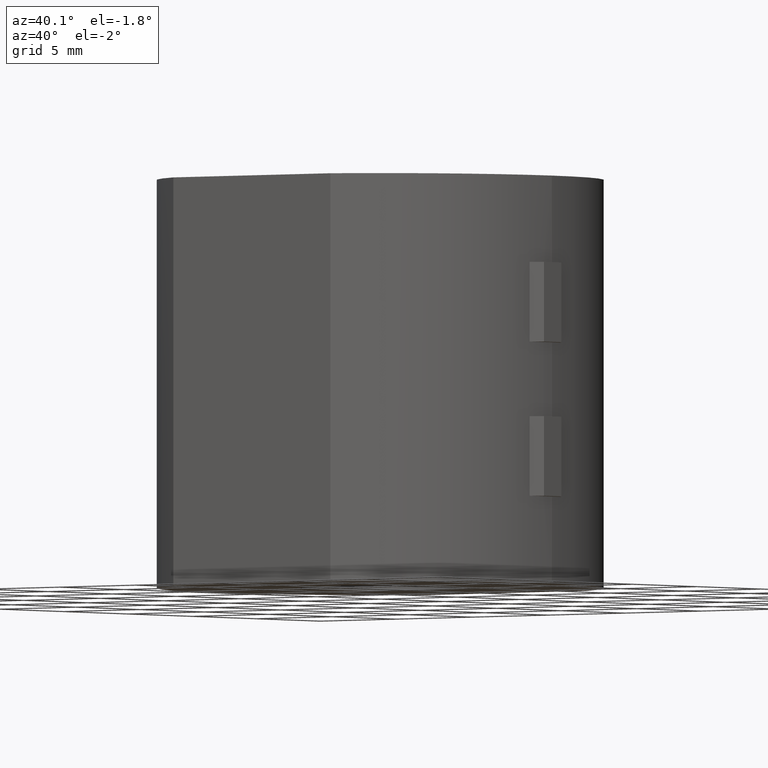
[diagram: clean part render]
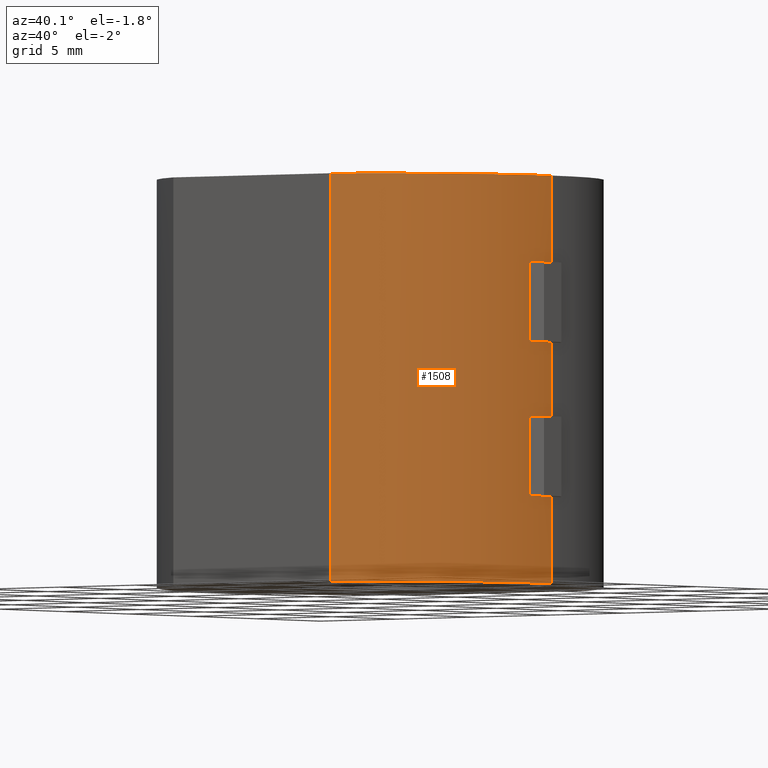
[diagram: same view with one face highlighted and labeled with its STEP entity id]
A machine part, auxiliary view. The second image highlights one B-rep face of the part: STEP entity #1508.
In plain terms, the highlighted cylindrical surface (partial cylindrical patch) has radius 11.25 mm, axis along (0, 0, 1).
Its self-contained STEP definition (entity closure, byte-faithful):
#3 = LINE ( 'NONE', #3121, #2848 ) ;
#43 = VERTEX_POINT ( 'NONE', #389 ) ;
#46 = VERTEX_POINT ( 'NONE', #2771 ) ;
#103 = VERTEX_POINT ( 'NONE', #1863 ) ;
#109 = ORIENTED_EDGE ( 'NONE', *, *, #1442, .T. ) ;
#111 = EDGE_CURVE ( 'NONE', #895, #780, #3036, .T. ) ;
#117 = CARTESIAN_POINT ( 'NONE',  ( 11.25000000000000400, -0.01000000000000000000, -10.25000000000000000 ) ) ;
#128 = DIRECTION ( 'NONE',  ( -0.0000000000000000000, -0.0000000000000000000, 1.000000000000000000 ) ) ;
#268 = DIRECTION ( 'NONE',  ( 0.0000000000000000000, 0.0000000000000000000, 1.000000000000000000 ) ) ;
#274 = CYLINDRICAL_SURFACE ( 'NONE', #1062, 11.25000000000000200 ) ;
#373 = CARTESIAN_POINT ( 'NONE',  ( 0.0000000000000000000, 0.0000000000000000000, -5.875000000000000000 ) ) ;
#380 = ORIENTED_EDGE ( 'NONE', *, *, #1910, .F. ) ;
#389 = CARTESIAN_POINT ( 'NONE',  ( 11.25000000000000400, -0.01000000000000000000, 10.25000000000000000 ) ) ;
#416 = ORIENTED_EDGE ( 'NONE', *, *, #1478, .T. ) ;
#469 = DIRECTION ( 'NONE',  ( 0.0000000000000000000, 0.0000000000000000000, 1.000000000000000000 ) ) ;
#478 = EDGE_LOOP ( 'NONE', ( #2708, #489, #1992, #2574, #1784, #380, #109, #2122, #2725, #1794, #416, #1174 ) ) ;
#482 = CARTESIAN_POINT ( 'NONE',  ( 11.22757320172084200, -0.7100000000000005200, 1.875000000000000000 ) ) ;
#489 = ORIENTED_EDGE ( 'NONE', *, *, #2761, .T. ) ;
#544 = DIRECTION ( 'NONE',  ( 1.000000000000000000, 0.0000000000000000000, 0.0000000000000000000 ) ) ;
#549 = VECTOR ( 'NONE', #128, 1000.000000000000000 ) ;
#585 = VECTOR ( 'NONE', #859, 1000.000000000000000 ) ;
#591 = CARTESIAN_POINT ( 'NONE',  ( 5.153883109957860100, -10.00000444444357100, -3.416666666666667000 ) ) ;
#595 = CARTESIAN_POINT ( 'NONE',  ( 0.0000000000000000000, 0.0000000000000000000, -10.25000000000000000 ) ) ;
#602 = AXIS2_PLACEMENT_3D ( 'NONE', #1947, #2509, #1825 ) ;
#689 = VERTEX_POINT ( 'NONE', #702 ) ;
#695 = CARTESIAN_POINT ( 'NONE',  ( 0.0000000000000000000, 0.0000000000000000000, -10.25000000000000000 ) ) ;
#700 = DIRECTION ( 'NONE',  ( -0.0000000000000000000, 0.0000000000000000000, -1.000000000000000000 ) ) ;
#702 = CARTESIAN_POINT ( 'NONE',  ( 11.25000000000000200, -0.01000000000000000000, 5.875000000000000000 ) ) ;
#780 = VERTEX_POINT ( 'NONE', #482 ) ;
#791 = CARTESIAN_POINT ( 'NONE',  ( 11.25000000000000400, -0.01000000000000000000, -10.25000000000000000 ) ) ;
#859 = DIRECTION ( 'NONE',  ( -0.0000000000000000000, -0.0000000000000000000, 1.000000000000000000 ) ) ;
#865 = CARTESIAN_POINT ( 'NONE',  ( 5.153883109957860100, -10.00000444444357100, 3.416666666666667000 ) ) ;
#895 = VERTEX_POINT ( 'NONE', #1950 ) ;
#913 = AXIS2_PLACEMENT_3D ( 'NONE', #1399, #700, #954 ) ;
#928 = VERTEX_POINT ( 'NONE', #1739 ) ;
#954 = DIRECTION ( 'NONE',  ( 1.000000000000000000, 0.0000000000000000000, 0.0000000000000000000 ) ) ;
#957 = DIRECTION ( 'NONE',  ( -0.0000000000000000000, -0.0000000000000000000, 1.000000000000000000 ) ) ;
#962 = CIRCLE ( 'NONE', #1237, 11.25000000000000200 ) ;
#1019 = AXIS2_PLACEMENT_3D ( 'NONE', #1556, #2027, #2265 ) ;
#1062 = AXIS2_PLACEMENT_3D ( 'NONE', #595, #1093, #2546 ) ;
#1080 = VERTEX_POINT ( 'NONE', #1294 ) ;
#1093 = DIRECTION ( 'NONE',  ( 0.0000000000000000000, 0.0000000000000000000, 1.000000000000000000 ) ) ;
#1144 = DIRECTION ( 'NONE',  ( -0.0000000000000000000, -0.0000000000000000000, -1.000000000000000000 ) ) ;
#1174 = ORIENTED_EDGE ( 'NONE', *, *, #1419, .F. ) ;
#1182 = LINE ( 'NONE', #2532, #585 ) ;
#1183 = VERTEX_POINT ( 'NONE', #1573 ) ;
#1237 = AXIS2_PLACEMENT_3D ( 'NONE', #373, #1320, #2980 ) ;
#1256 = CIRCLE ( 'NONE', #602, 11.25000000000000200 ) ;
#1269 = VERTEX_POINT ( 'NONE', #791 ) ;
#1294 = CARTESIAN_POINT ( 'NONE',  ( 11.22757320172084200, -0.7100000000000005200, -1.875000000000000000 ) ) ;
#1320 = DIRECTION ( 'NONE',  ( -0.0000000000000000000, -0.0000000000000000000, 1.000000000000000000 ) ) ;
#1329 = CARTESIAN_POINT ( 'NONE',  ( 5.153879925909331300, -10.00000108546538300, -10.25000000000000000 ) ) ;
#1343 = CARTESIAN_POINT ( 'NONE',  ( 11.22757320172084200, -0.7100000000000005200, -5.875000000000000000 ) ) ;
#1399 = CARTESIAN_POINT ( 'NONE',  ( 0.0000000000000000000, 0.0000000000000000000, 1.875000000000000000 ) ) ;
#1419 = EDGE_CURVE ( 'NONE', #1584, #46, #962, .T. ) ;
#1442 = EDGE_CURVE ( 'NONE', #689, #43, #1182, .T. ) ;
#1478 = EDGE_CURVE ( 'NONE', #1269, #46, #2683, .T. ) ;
#1508 = ADVANCED_FACE ( 'NONE', ( #2416 ), #274, .T. ) ;
#1556 = CARTESIAN_POINT ( 'NONE',  ( 0.0000000000000000000, 0.0000000000000000000, -1.875000000000000000 ) ) ;
#1570 = B_SPLINE_CURVE_WITH_KNOTS ( 'NONE', 3,
 ( #1329, #591, #865, #1787 ),
 .UNSPECIFIED., .F., .F.,
 ( 4, 4 ),
 ( 0.0000000000000000000, 1.000000000000000000 ),
 .UNSPECIFIED. ) ;
#1573 = CARTESIAN_POINT ( 'NONE',  ( 11.25000000000000200, -0.01000000000000000000, 1.875000000000000000 ) ) ;
#1581 = CIRCLE ( 'NONE', #1867, 11.25000000000000200 ) ;
#1584 = VERTEX_POINT ( 'NONE', #1343 ) ;
#1739 = CARTESIAN_POINT ( 'NONE',  ( 5.153883109957860100, -10.00000444444357100, 10.25000000000000000 ) ) ;
#1773 = CIRCLE ( 'NONE', #913, 11.25000000000000200 ) ;
#1784 = ORIENTED_EDGE ( 'NONE', *, *, #111, .F. ) ;
#1787 = CARTESIAN_POINT ( 'NONE',  ( 5.153883109957860100, -10.00000444444357100, 10.25000000000000000 ) ) ;
#1794 = ORIENTED_EDGE ( 'NONE', *, *, #2233, .T. ) ;
#1814 = CIRCLE ( 'NONE', #2529, 11.25000000000000200 ) ;
#1825 = DIRECTION ( 'NONE',  ( 1.000000000000000000, 0.0000000000000000000, 0.0000000000000000000 ) ) ;
#1863 = CARTESIAN_POINT ( 'NONE',  ( 5.153879925909331300, -10.00000108546538300, -10.25000000000000000 ) ) ;
#1867 = AXIS2_PLACEMENT_3D ( 'NONE', #2185, #268, #544 ) ;
#1910 = EDGE_CURVE ( 'NONE', #689, #895, #1256, .T. ) ;
#1947 = CARTESIAN_POINT ( 'NONE',  ( 0.0000000000000000000, 0.0000000000000000000, 5.875000000000000000 ) ) ;
#1950 = CARTESIAN_POINT ( 'NONE',  ( 11.22757320172084200, -0.7100000000000005200, 5.875000000000000000 ) ) ;
#1969 = VERTEX_POINT ( 'NONE', #2525 ) ;
#1992 = ORIENTED_EDGE ( 'NONE', *, *, #2177, .T. ) ;
#2013 = VECTOR ( 'NONE', #1144, 1000.000000000000000 ) ;
#2027 = DIRECTION ( 'NONE',  ( -0.0000000000000000000, -0.0000000000000000000, 1.000000000000000000 ) ) ;
#2122 = ORIENTED_EDGE ( 'NONE', *, *, #2521, .F. ) ;
#2177 = EDGE_CURVE ( 'NONE', #1969, #1183, #3, .T. ) ;
#2185 = CARTESIAN_POINT ( 'NONE',  ( 0.0000000000000000000, 0.0000000000000000000, 10.25000000000000000 ) ) ;
#2233 = EDGE_CURVE ( 'NONE', #103, #1269, #1814, .T. ) ;
#2265 = DIRECTION ( 'NONE',  ( -1.000000000000000000, 0.0000000000000000000, 0.0000000000000000000 ) ) ;
#2313 = LINE ( 'NONE', #2738, #2767 ) ;
#2380 = CIRCLE ( 'NONE', #1019, 11.25000000000000200 ) ;
#2416 = FACE_OUTER_BOUND ( 'NONE', #478, .T. ) ;
#2421 = EDGE_CURVE ( 'NONE', #1183, #780, #1773, .T. ) ;
#2509 = DIRECTION ( 'NONE',  ( -0.0000000000000000000, 0.0000000000000000000, -1.000000000000000000 ) ) ;
#2521 = EDGE_CURVE ( 'NONE', #928, #43, #1581, .T. ) ;
#2525 = CARTESIAN_POINT ( 'NONE',  ( 11.25000000000000200, -0.01000000000000000000, -1.875000000000000000 ) ) ;
#2529 = AXIS2_PLACEMENT_3D ( 'NONE', #695, #469, #3102 ) ;
#2532 = CARTESIAN_POINT ( 'NONE',  ( 11.25000000000000400, -0.01000000000000000000, -10.25000000000000000 ) ) ;
#2546 = DIRECTION ( 'NONE',  ( 1.000000000000000000, 0.0000000000000000000, 0.0000000000000000000 ) ) ;
#2574 = ORIENTED_EDGE ( 'NONE', *, *, #2421, .T. ) ;
#2664 = CARTESIAN_POINT ( 'NONE',  ( 11.22757320172084200, -0.7100000000000005200, -10.25000000000000000 ) ) ;
#2683 = LINE ( 'NONE', #117, #549 ) ;
#2708 = ORIENTED_EDGE ( 'NONE', *, *, #2811, .T. ) ;
#2725 = ORIENTED_EDGE ( 'NONE', *, *, #2788, .F. ) ;
#2738 = CARTESIAN_POINT ( 'NONE',  ( 11.22757320172084200, -0.7100000000000005200, -10.25000000000000000 ) ) ;
#2761 = EDGE_CURVE ( 'NONE', #1080, #1969, #2380, .T. ) ;
#2767 = VECTOR ( 'NONE', #2995, 1000.000000000000000 ) ;
#2771 = CARTESIAN_POINT ( 'NONE',  ( 11.25000000000000400, -0.01000000000000000000, -5.875000000000000000 ) ) ;
#2788 = EDGE_CURVE ( 'NONE', #103, #928, #1570, .T. ) ;
#2811 = EDGE_CURVE ( 'NONE', #1584, #1080, #2313, .T. ) ;
#2848 = VECTOR ( 'NONE', #957, 1000.000000000000000 ) ;
#2980 = DIRECTION ( 'NONE',  ( -1.000000000000000000, 0.0000000000000000000, 0.0000000000000000000 ) ) ;
#2995 = DIRECTION ( 'NONE',  ( 0.0000000000000000000, 0.0000000000000000000, 1.000000000000000000 ) ) ;
#3036 = LINE ( 'NONE', #2664, #2013 ) ;
#3102 = DIRECTION ( 'NONE',  ( 1.000000000000000000, 0.0000000000000000000, 0.0000000000000000000 ) ) ;
#3121 = CARTESIAN_POINT ( 'NONE',  ( 11.25000000000000400, -0.01000000000000000000, -10.25000000000000000 ) ) ;